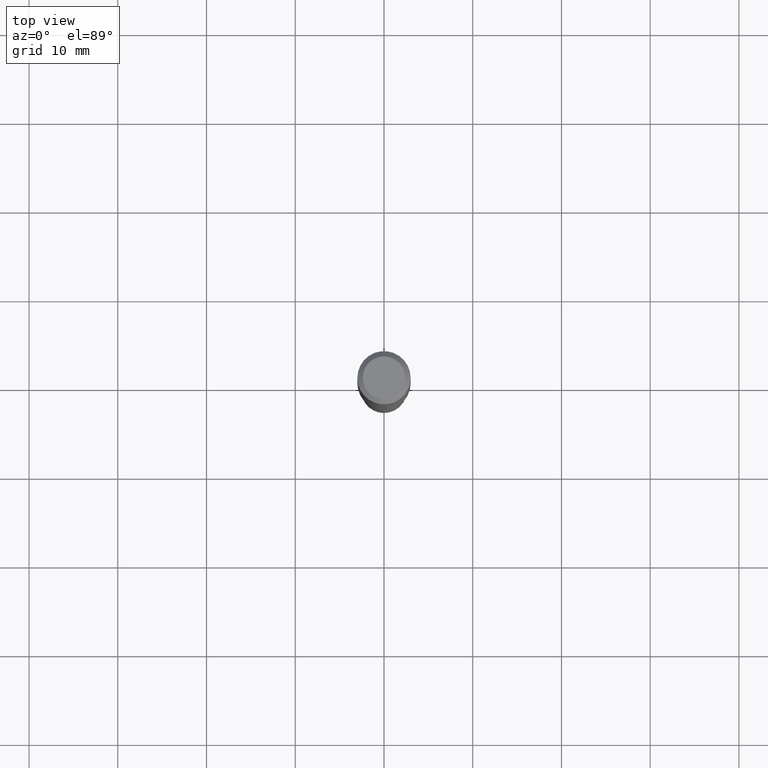
[diagram: clean part render]
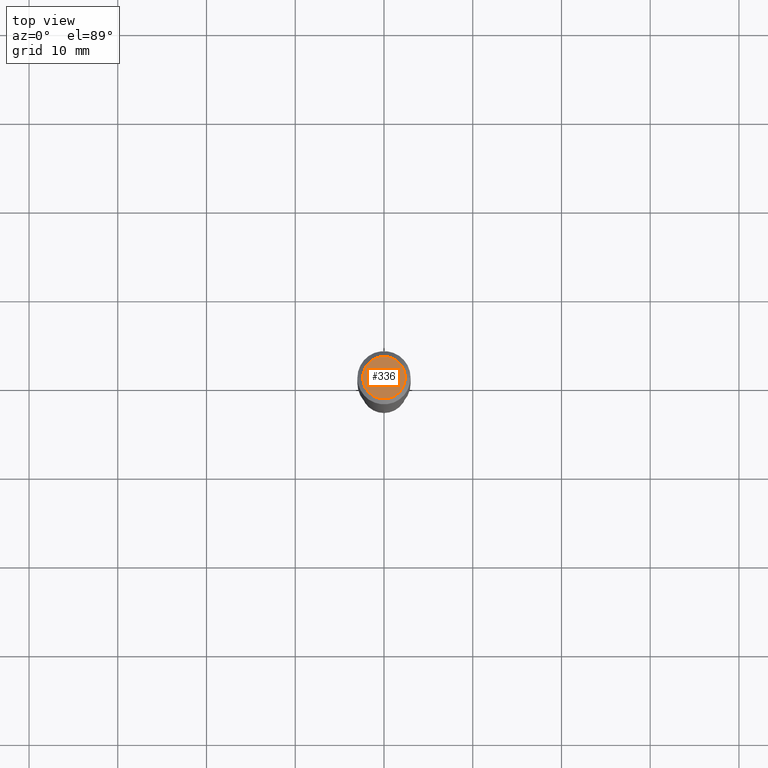
[diagram: same view with one face highlighted and labeled with its STEP entity id]
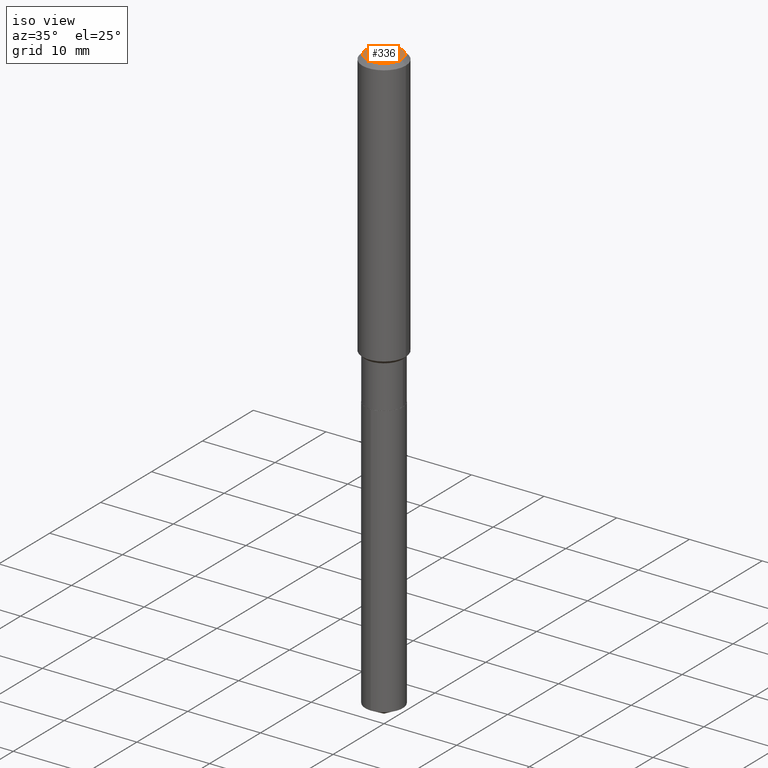
[diagram: same view with one face highlighted and labeled with its STEP entity id]
A machine part, top view. The second image highlights one B-rep face of the part: STEP entity #336.
A second angle (iso view) of the same face is appended — the face is thin or edge-on in the first view.
In plain terms, the highlighted planar face has unit normal (0, -0, -1).
Its self-contained STEP definition (entity closure, byte-faithful):
#15 = CARTESIAN_POINT ( 'NONE',  ( -0.09447999999999998066, 7.009847083995354710E-16, -2.700101262760559836E-17 ) ) ;
#26 = DIRECTION ( 'NONE',  ( 1.000000000000000000, -6.982962677686267499E-15, 4.875432709231658792E-29 ) ) ;
#59 = VERTEX_POINT ( 'NONE', #130 ) ;
#81 = ORIENTED_EDGE ( 'NONE', *, *, #198, .T. ) ;
#96 = DIRECTION ( 'NONE',  ( -1.000000000000000000, 6.982962677686265922E-15, -4.876176775795935793E-29 ) ) ;
#130 = CARTESIAN_POINT ( 'NONE',  ( 0.09447999999999998066, -7.704367267948738690E-16, -2.700101262759583929E-17 ) ) ;
#138 = DIRECTION ( 'NONE',  ( 1.000000000000000000, -6.982962677686267499E-15, 4.875432709231658792E-29 ) ) ;
#143 = CARTESIAN_POINT ( 'NONE',  ( 6.603013411620882309E-46, -9.427353171913646324E-32, -2.700101262760083747E-17 ) ) ;
#160 = EDGE_CURVE ( 'NONE', #239, #59, #220, .T. ) ;
#178 = DIRECTION ( 'NONE',  ( 2.438088387897960049E-29, -3.491481338843145188E-15, -1.000000000000000000 ) ) ;
#198 = EDGE_CURVE ( 'NONE', #59, #239, #426, .T. ) ;
#207 = CARTESIAN_POINT ( 'NONE',  ( 3.301506705810441154E-46, -4.713676585956823162E-32, -1.350050631380041873E-17 ) ) ;
#210 = AXIS2_PLACEMENT_3D ( 'NONE', #143, #451, #138 ) ;
#220 = CIRCLE ( 'NONE', #264, 0.09447999999999998066 ) ;
#227 = DIRECTION ( 'NONE',  ( -2.445468806185136597E-29, 3.491481338843145583E-15, 1.000000000000000000 ) ) ;
#239 = VERTEX_POINT ( 'NONE', #15 ) ;
#264 = AXIS2_PLACEMENT_3D ( 'NONE', #299, #227, #26 ) ;
#299 = CARTESIAN_POINT ( 'NONE',  ( 6.603013411620882309E-46, -9.427353171913646324E-32, -2.700101262760083747E-17 ) ) ;
#336 = ADVANCED_FACE ( 'NONE', ( #366 ), #377, .F. ) ;
#346 = EDGE_LOOP ( 'NONE', ( #382, #81 ) ) ;
#366 = FACE_OUTER_BOUND ( 'NONE', #346, .T. ) ;
#368 = AXIS2_PLACEMENT_3D ( 'NONE', #207, #178, #96 ) ;
#377 = PLANE ( 'NONE',  #368 ) ;
#382 = ORIENTED_EDGE ( 'NONE', *, *, #160, .T. ) ;
#426 = CIRCLE ( 'NONE', #210, 0.09447999999999998066 ) ;
#451 = DIRECTION ( 'NONE',  ( -2.445468806185136597E-29, 3.491481338843145583E-15, 1.000000000000000000 ) ) ;